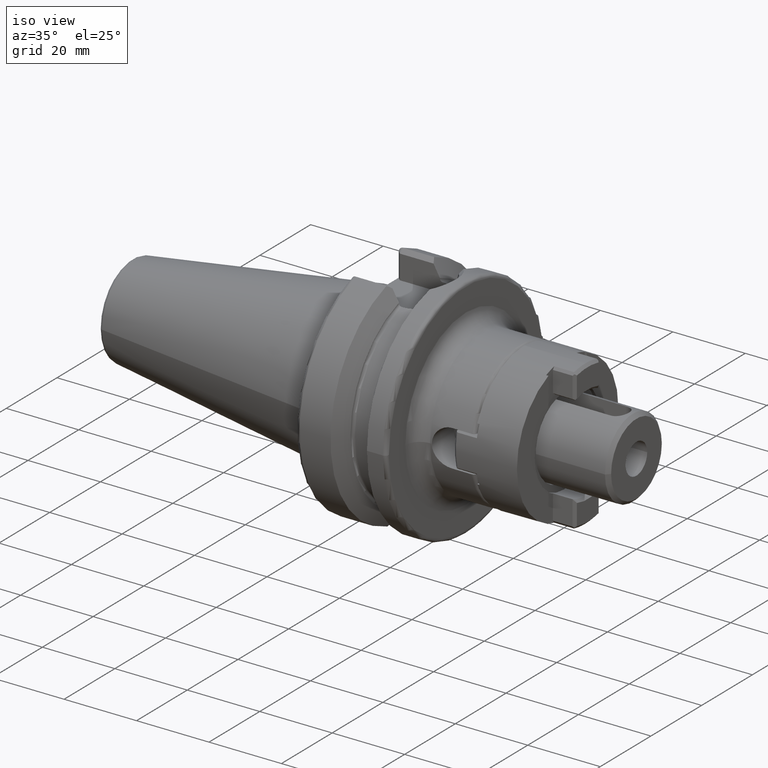
[diagram: clean part render]
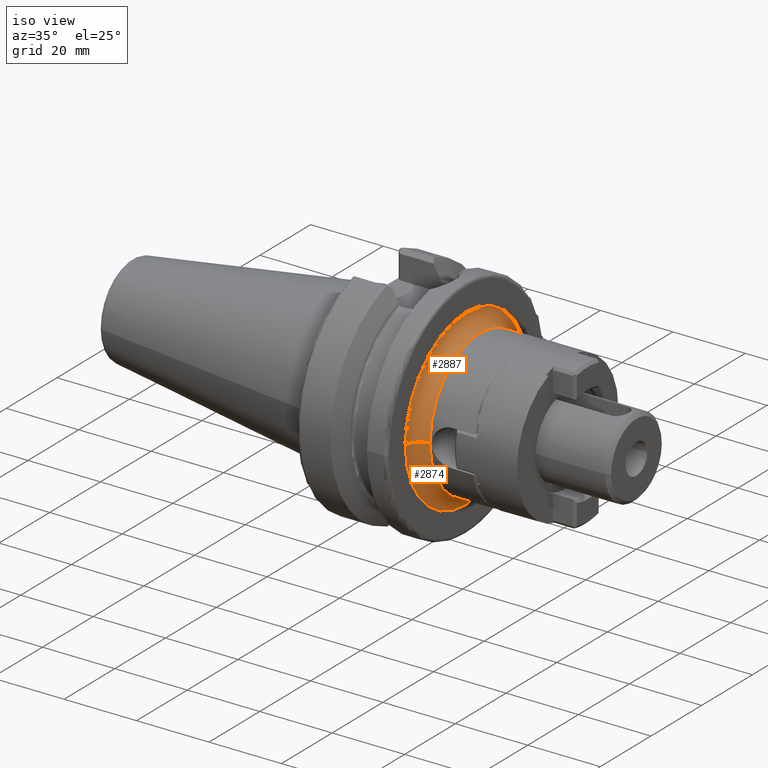
[diagram: same view with one multi-face feature highlighted, each face labeled with its STEP entity id]
A machine part, iso view. The highlighted faces form ONE feature: a constant-radius fillet chain: 2 tangent blend faces with common blend radius 4 mm. The faces share edges in the B-rep.
Their STEP definitions:
[1] entity #2874 (Torus):
#836=CARTESIAN_POINT('',(2.7E1,0.E0,0.E0));
#837=DIRECTION('',(1.E0,0.E0,0.E0));
#838=DIRECTION('',(0.E0,-1.E0,0.E0));
#839=AXIS2_PLACEMENT_3D('',#836,#837,#838);
#846=CARTESIAN_POINT('',(3.1E1,-2.4E1,8.288369990339E-13));
#847=DIRECTION('',(0.E0,-3.453487495975E-14,-1.E0));
#848=DIRECTION('',(-1.E0,2.664535259100E-14,0.E0));
#849=AXIS2_PLACEMENT_3D('',#846,#847,#848);
#851=CARTESIAN_POINT('',(3.1E1,2.4E1,-8.319456235029E-13));
#852=DIRECTION('',(0.E0,3.466324449697E-14,1.E0));
#853=DIRECTION('',(-1.E0,-2.753353101070E-14,0.E0));
#854=AXIS2_PLACEMENT_3D('',#851,#852,#853);
#1225=CARTESIAN_POINT('',(3.1E1,0.E0,0.E0));
#1226=DIRECTION('',(1.E0,0.E0,0.E0));
#1227=DIRECTION('',(0.E0,-1.E0,0.E0));
#1228=AXIS2_PLACEMENT_3D('',#1225,#1226,#1227);
#1681=CARTESIAN_POINT('',(2.7E1,-2.4E1,0.E0));
#1682=CARTESIAN_POINT('',(2.7E1,2.4E1,0.E0));
#1683=VERTEX_POINT('',#1681);
#1684=VERTEX_POINT('',#1682);
#1685=CARTESIAN_POINT('',(3.1E1,-2.E1,0.E0));
#1686=CARTESIAN_POINT('',(3.1E1,2.E1,0.E0));
#1687=VERTEX_POINT('',#1685);
#1688=VERTEX_POINT('',#1686);
#2860=CARTESIAN_POINT('',(3.1E1,0.E0,0.E0));
#2861=DIRECTION('',(1.E0,0.E0,0.E0));
#2862=DIRECTION('',(0.E0,-9.999704443983E-1,7.688324254756E-3));
#2863=AXIS2_PLACEMENT_3D('',#2860,#2861,#2862);
#2864=TOROIDAL_SURFACE('',#2863,2.4E1,4.E0);
#2865=ORIENTED_EDGE('',*,*,#2853,.F.);
#2867=ORIENTED_EDGE('',*,*,#2866,.T.);
#2869=ORIENTED_EDGE('',*,*,#2868,.T.);
#2871=ORIENTED_EDGE('',*,*,#2870,.F.);
#2872=EDGE_LOOP('',(#2865,#2867,#2869,#2871));
#2873=FACE_OUTER_BOUND('',#2872,.F.);
#2874=ADVANCED_FACE('',(#2873),#2864,.F.);
#840=CIRCLE('',#839,2.4E1);
#850=CIRCLE('',#849,4.E0);
#855=CIRCLE('',#854,4.E0);
#1229=CIRCLE('',#1228,2.E1);
#2853=EDGE_CURVE('',#1683,#1684,#840,.T.);
#2866=EDGE_CURVE('',#1683,#1687,#850,.T.);
#2868=EDGE_CURVE('',#1687,#1688,#1229,.T.);
#2870=EDGE_CURVE('',#1684,#1688,#855,.T.);
[2] entity #2887 (Torus):
#841=CARTESIAN_POINT('',(2.7E1,0.E0,0.E0));
#842=DIRECTION('',(1.E0,0.E0,0.E0));
#843=DIRECTION('',(0.E0,1.E0,0.E0));
#844=AXIS2_PLACEMENT_3D('',#841,#842,#843);
#846=CARTESIAN_POINT('',(3.1E1,-2.4E1,8.288369990339E-13));
#847=DIRECTION('',(0.E0,-3.453487495975E-14,-1.E0));
#848=DIRECTION('',(-1.E0,2.664535259100E-14,0.E0));
#849=AXIS2_PLACEMENT_3D('',#846,#847,#848);
#851=CARTESIAN_POINT('',(3.1E1,2.4E1,-8.319456235029E-13));
#852=DIRECTION('',(0.E0,3.466324449697E-14,1.E0));
#853=DIRECTION('',(-1.E0,-2.753353101070E-14,0.E0));
#854=AXIS2_PLACEMENT_3D('',#851,#852,#853);
#869=CARTESIAN_POINT('',(3.1E1,0.E0,0.E0));
#870=DIRECTION('',(1.E0,0.E0,0.E0));
#871=DIRECTION('',(0.E0,1.E0,0.E0));
#872=AXIS2_PLACEMENT_3D('',#869,#870,#871);
#1681=CARTESIAN_POINT('',(2.7E1,-2.4E1,0.E0));
#1682=CARTESIAN_POINT('',(2.7E1,2.4E1,0.E0));
#1683=VERTEX_POINT('',#1681);
#1684=VERTEX_POINT('',#1682);
#1685=CARTESIAN_POINT('',(3.1E1,-2.E1,0.E0));
#1686=CARTESIAN_POINT('',(3.1E1,2.E1,0.E0));
#1687=VERTEX_POINT('',#1685);
#1688=VERTEX_POINT('',#1686);
#2875=CARTESIAN_POINT('',(3.1E1,0.E0,0.E0));
#2876=DIRECTION('',(1.E0,0.E0,0.E0));
#2877=DIRECTION('',(0.E0,9.999704443983E-1,-7.688324254755E-3));
#2878=AXIS2_PLACEMENT_3D('',#2875,#2876,#2877);
#2879=TOROIDAL_SURFACE('',#2878,2.4E1,4.E0);
#2880=ORIENTED_EDGE('',*,*,#2855,.F.);
#2881=ORIENTED_EDGE('',*,*,#2870,.T.);
#2883=ORIENTED_EDGE('',*,*,#2882,.T.);
#2884=ORIENTED_EDGE('',*,*,#2866,.F.);
#2885=EDGE_LOOP('',(#2880,#2881,#2883,#2884));
#2886=FACE_OUTER_BOUND('',#2885,.F.);
#2887=ADVANCED_FACE('',(#2886),#2879,.F.);
#845=CIRCLE('',#844,2.4E1);
#850=CIRCLE('',#849,4.E0);
#855=CIRCLE('',#854,4.E0);
#873=CIRCLE('',#872,2.E1);
#2855=EDGE_CURVE('',#1684,#1683,#845,.T.);
#2866=EDGE_CURVE('',#1683,#1687,#850,.T.);
#2870=EDGE_CURVE('',#1684,#1688,#855,.T.);
#2882=EDGE_CURVE('',#1688,#1687,#873,.T.);